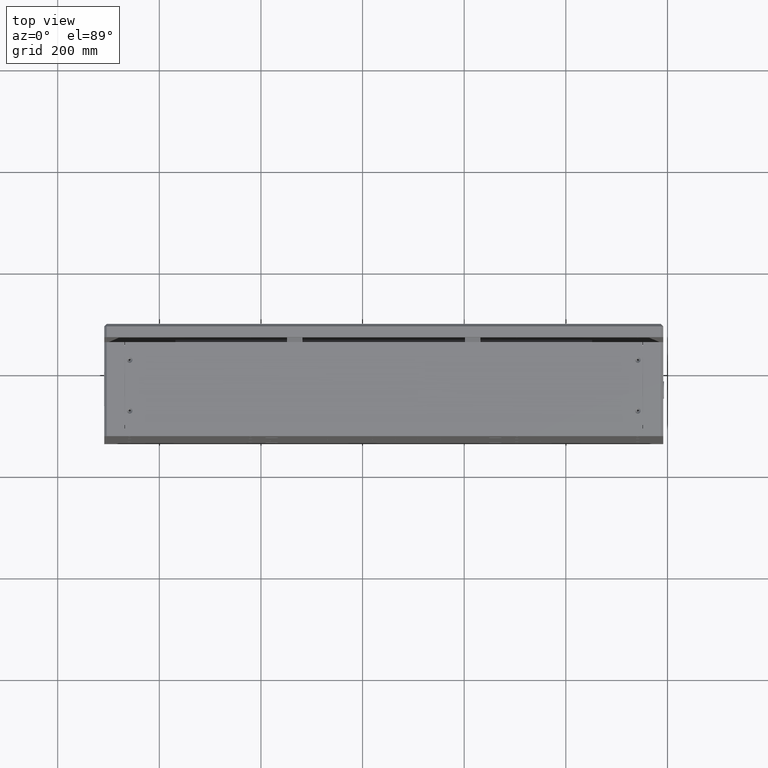
[diagram: clean part render]
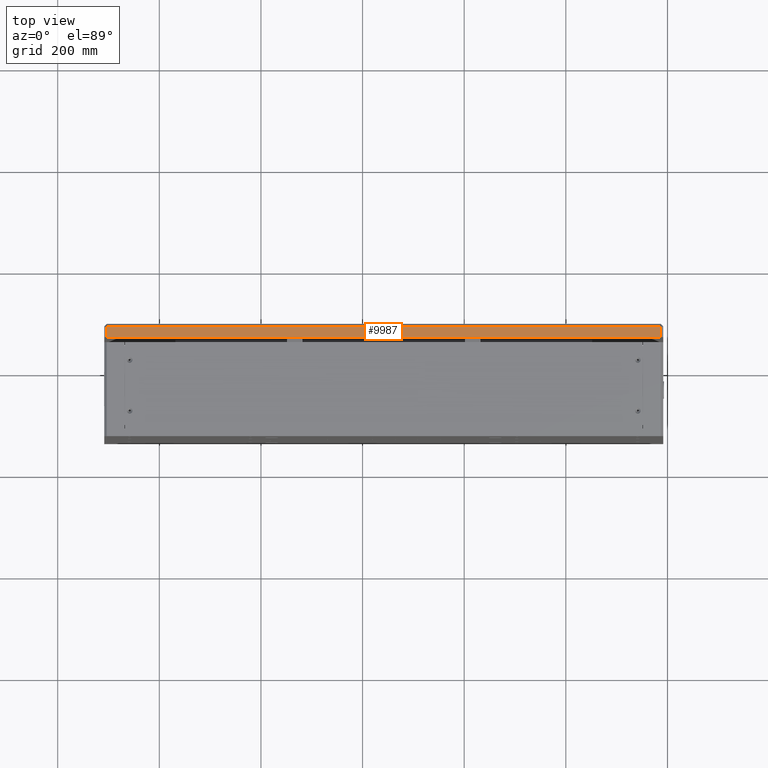
[diagram: same view with one face highlighted and labeled with its STEP entity id]
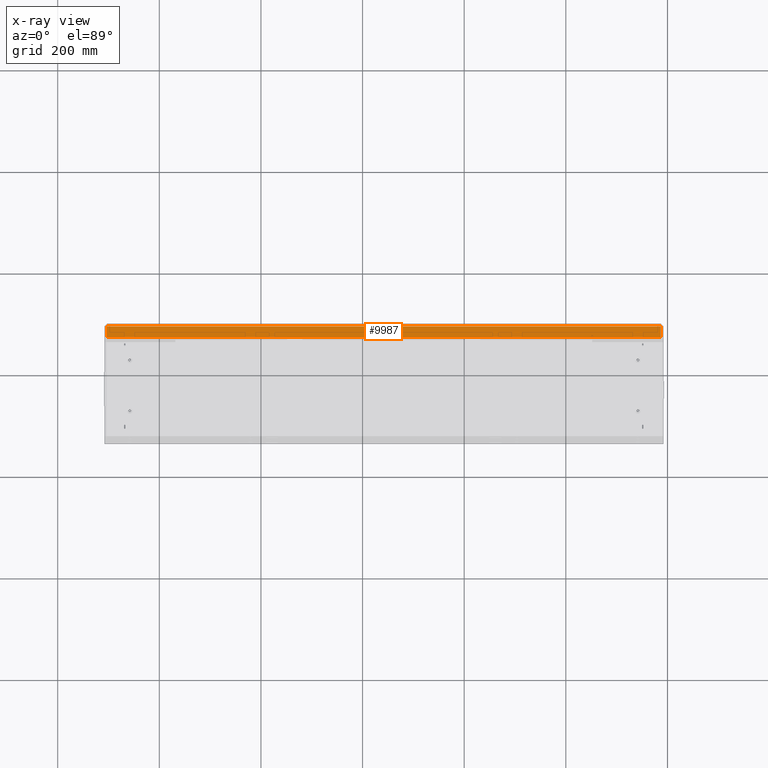
[diagram: x-ray of the same camera — body ghosted, the highlighted face saturated]
A machine part, top view. The second image highlights one B-rep face of the part: STEP entity #9987.
The next image is the same camera in x-ray: the body ghosted, the highlighted face saturated — about 0% of this face is hidden behind the body in this view.
In plain terms, the highlighted planar face has unit normal (0, 0, -1).
Its self-contained STEP definition (entity closure, byte-faithful):
#1172 = CARTESIAN_POINT ( 'NONE',  ( -703.3695244093422616, 283.9650746403642643, 1299.494235292438589 ) ) ;
#5838 = DIRECTION ( 'NONE',  ( 0.000000000000000000, 0.000000000000000000, -1.000000000000000000 ) ) ;
#7825 = ORIENTED_EDGE ( 'NONE', *, *, #26681, .F. ) ;
#9987 = ADVANCED_FACE ( 'NONE', ( #45273 ), #13790, .F. ) ;
#13790 = PLANE ( 'NONE',  #36237 ) ;
#15366 = ORIENTED_EDGE ( 'NONE', *, *, #50609, .T. ) ;
#16059 = ORIENTED_EDGE ( 'NONE', *, *, #27761, .F. ) ;
#17163 = DIRECTION ( 'NONE',  ( -0.000000000000000000, -1.000000000000000000, -0.000000000000000000 ) ) ;
#18791 = LINE ( 'NONE', #34396, #45001 ) ;
#20737 = LINE ( 'NONE', #44292, #28678 ) ;
#21376 = CARTESIAN_POINT ( 'NONE',  ( -703.3695244093422616, 259.9650746403642074, 1299.494235292438589 ) ) ;
#21672 = VECTOR ( 'NONE', #47507, 1000.000000000000000 ) ;
#22495 = VERTEX_POINT ( 'NONE', #21376 ) ;
#22604 = LINE ( 'NONE', #38482, #39325 ) ;
#22699 = EDGE_CURVE ( 'NONE', #30031, #22495, #18791, .T. ) ;
#26681 = EDGE_CURVE ( 'NONE', #28865, #30384, #22604, .T. ) ;
#27761 = EDGE_CURVE ( 'NONE', #30384, #30031, #20737, .T. ) ;
#28678 = VECTOR ( 'NONE', #17163, 1000.000000000000000 ) ;
#28865 = VERTEX_POINT ( 'NONE', #42539 ) ;
#30031 = VERTEX_POINT ( 'NONE', #30928 ) ;
#30384 = VERTEX_POINT ( 'NONE', #42668 ) ;
#30928 = CARTESIAN_POINT ( 'NONE',  ( 386.6304755906580226, 259.9650746403642074, 1299.494235292438589 ) ) ;
#32401 = LINE ( 'NONE', #1172, #21672 ) ;
#33519 = ORIENTED_EDGE ( 'NONE', *, *, #22699, .F. ) ;
#33656 = DIRECTION ( 'NONE',  ( -1.000000000000000000, -0.000000000000000000, -0.000000000000000000 ) ) ;
#34223 = CARTESIAN_POINT ( 'NONE',  ( -708.3695244093421479, 283.9650746403642643, 1299.494235292438589 ) ) ;
#34396 = CARTESIAN_POINT ( 'NONE',  ( -708.3695244093421479, 259.9650746403642074, 1299.494235292438589 ) ) ;
#36237 = AXIS2_PLACEMENT_3D ( 'NONE', #34223, #5838, #49839 ) ;
#38482 = CARTESIAN_POINT ( 'NONE',  ( -708.3695244093421479, 280.9650746403643780, 1299.494235292438589 ) ) ;
#39325 = VECTOR ( 'NONE', #42071, 1000.000000000000000 ) ;
#42071 = DIRECTION ( 'NONE',  ( 1.000000000000000000, -0.000000000000000000, 0.000000000000000000 ) ) ;
#42539 = CARTESIAN_POINT ( 'NONE',  ( -703.3695244093422616, 280.9650746403643780, 1299.494235292438589 ) ) ;
#42668 = CARTESIAN_POINT ( 'NONE',  ( 386.6304755906580226, 280.9650746403643780, 1299.494235292438589 ) ) ;
#42889 = EDGE_LOOP ( 'NONE', ( #15366, #33519, #16059, #7825 ) ) ;
#44292 = CARTESIAN_POINT ( 'NONE',  ( 386.6304755906580226, 283.9650746403642643, 1299.494235292438589 ) ) ;
#45001 = VECTOR ( 'NONE', #33656, 1000.000000000000000 ) ;
#45273 = FACE_OUTER_BOUND ( 'NONE', #42889, .T. ) ;
#47507 = DIRECTION ( 'NONE',  ( -0.000000000000000000, -1.000000000000000000, -0.000000000000000000 ) ) ;
#49839 = DIRECTION ( 'NONE',  ( -1.000000000000000000, 0.000000000000000000, -0.000000000000000000 ) ) ;
#50609 = EDGE_CURVE ( 'NONE', #28865, #22495, #32401, .T. ) ;